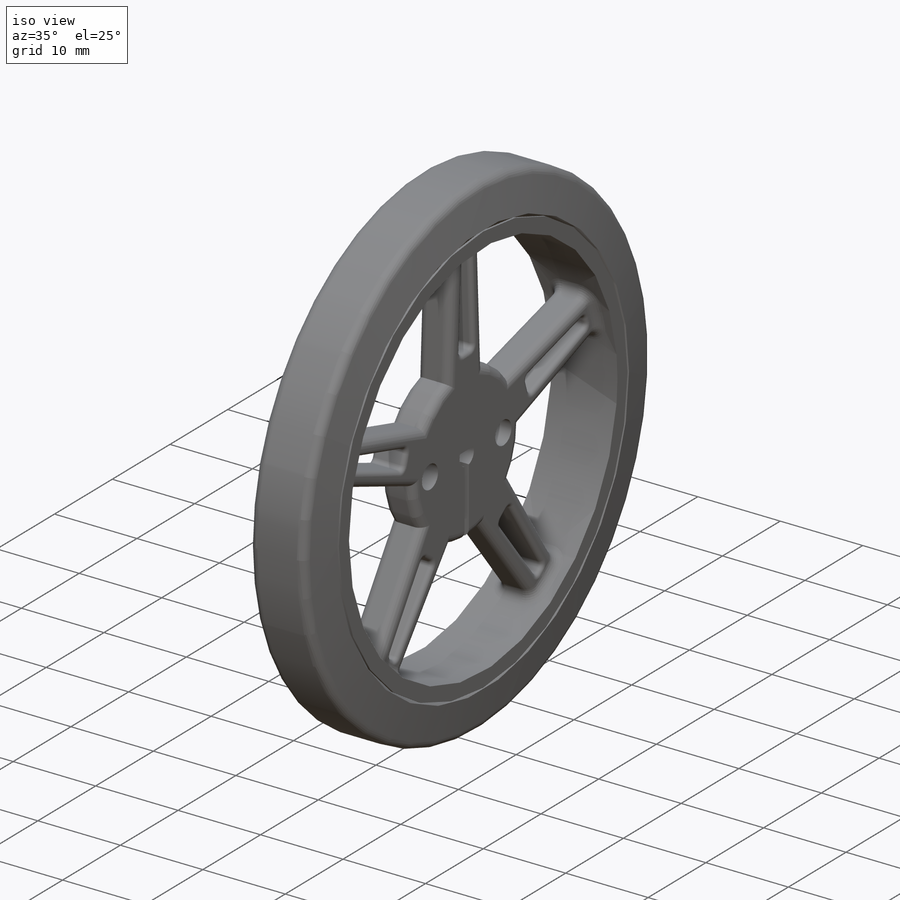
[diagram: iso view]
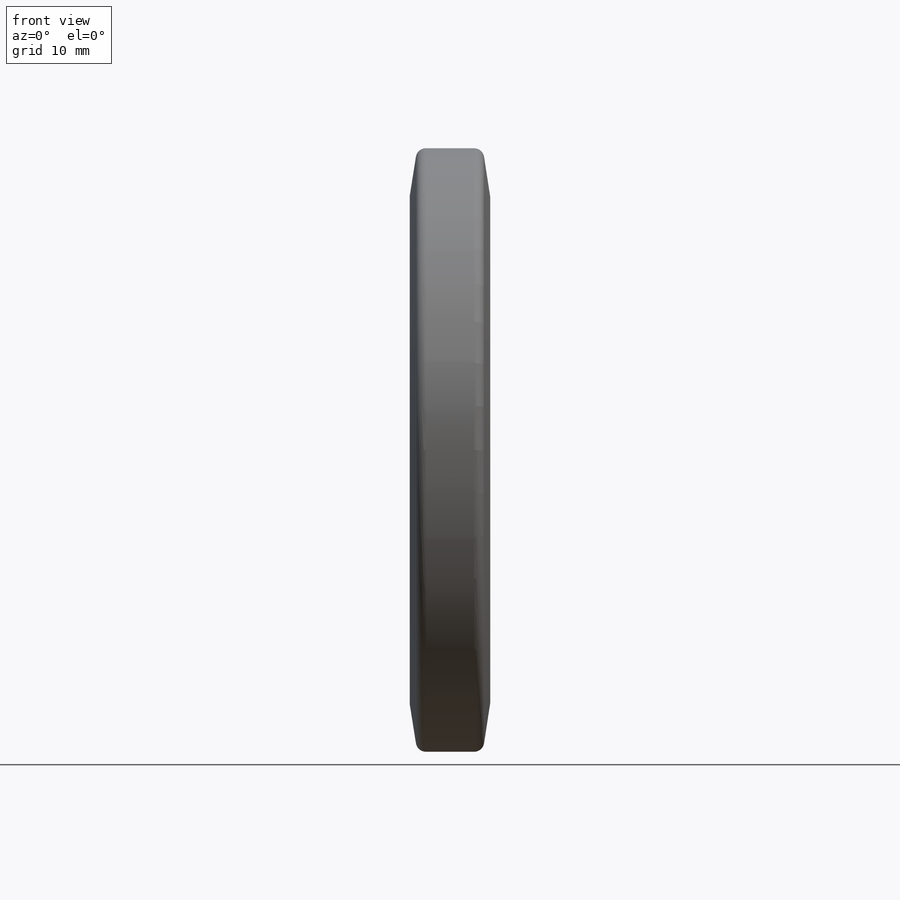
[diagram: front view]
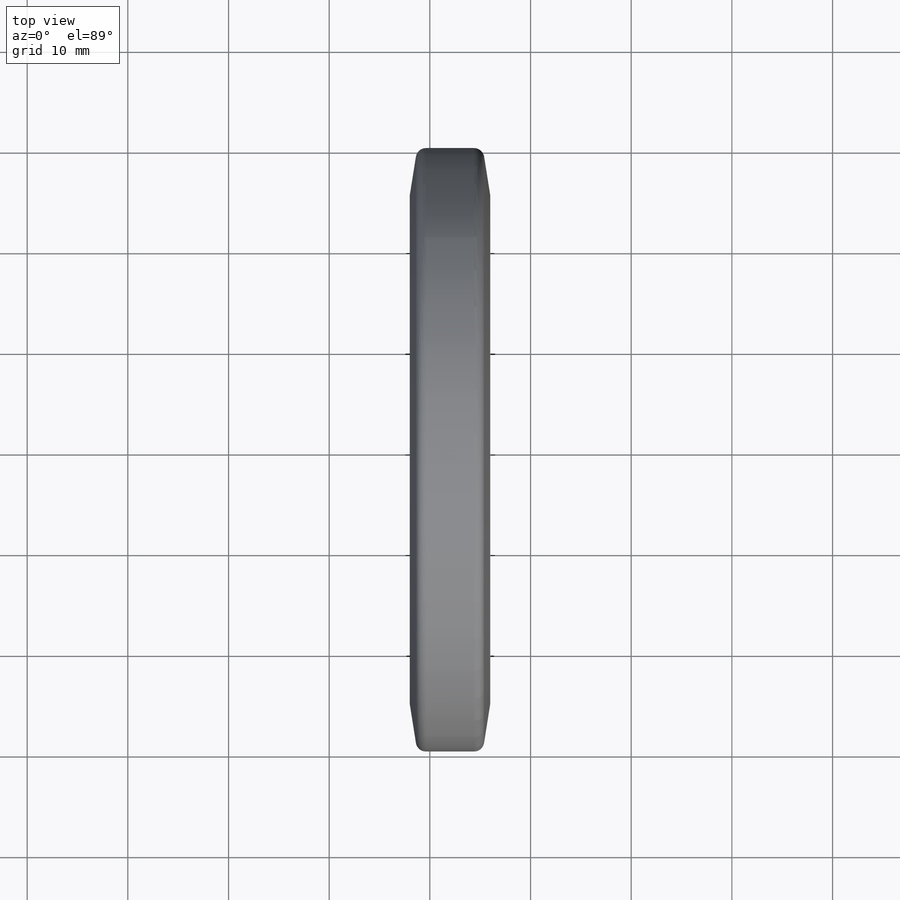
[diagram: top view]
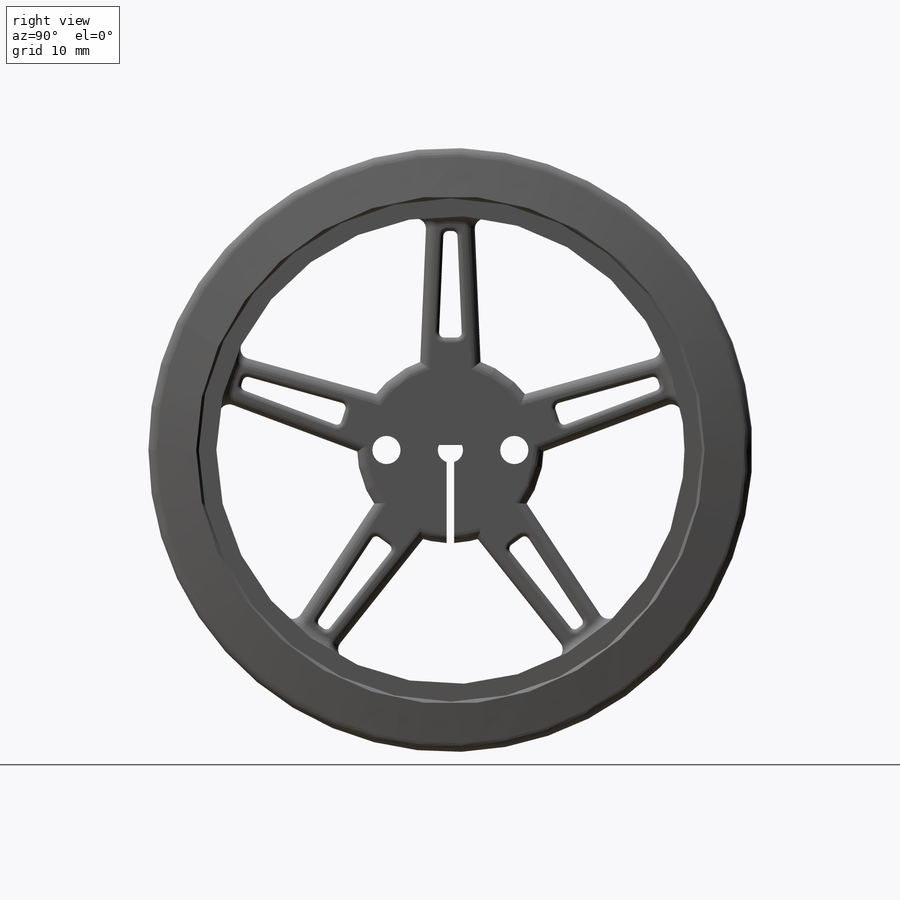
[diagram: right view]
SOLIDWORKS PART (.sldprt)
format: sldprt  version: not decoded by parser v0  size: 904,704 bytes
history: native  units: mm
features: fillet x4, sketch x3, extrude x2, material x1, revolve x1 (+13 scaffold rows collapsed)
feature tree (24):
  scaffold x13  (default folders/planes/origin — collapsed)
  material  "Material <not specified>"
  sketch  "Sketch1"  dims[D1=50.0mm D2=46.5mm D3=18.5mm D4=2.5mm D8=2.8mm D5=0.5mm D6=0.75mm D7=6.35mm D9=6.0mm D10=4.75mm D11=1.75mm D12=1.5mm D13=5.0]
  extrude  "Boss-Extrude1"  Depth=4mm
  fillet  "Fillet1"  Radius=1mm
  fillet  "Fillet2"  Radius=0.5mm
  sketch  "Sketch2"
  extrude  "Boss-Extrude2"  Depth=2mm
  fillet  "Fillet3"  Radius=1mm
  sketch  "Sketch3"  dims[c1.D1=7.5mm c1.D2=~4.113257mm c2.D2=135.0deg c2.D3=5.0mm c2.D4=3.25mm]
  revolve  "Revolve1"  Angle=360deg
  fillet  "Fillet4"  Radius=1mm
decode coverage: 9 of 10 modeling features carry decoded parameters
note: ~ marks probable driven/reference dimensions
note: suppression state not decoded; provenance and decode notes live in map.json
